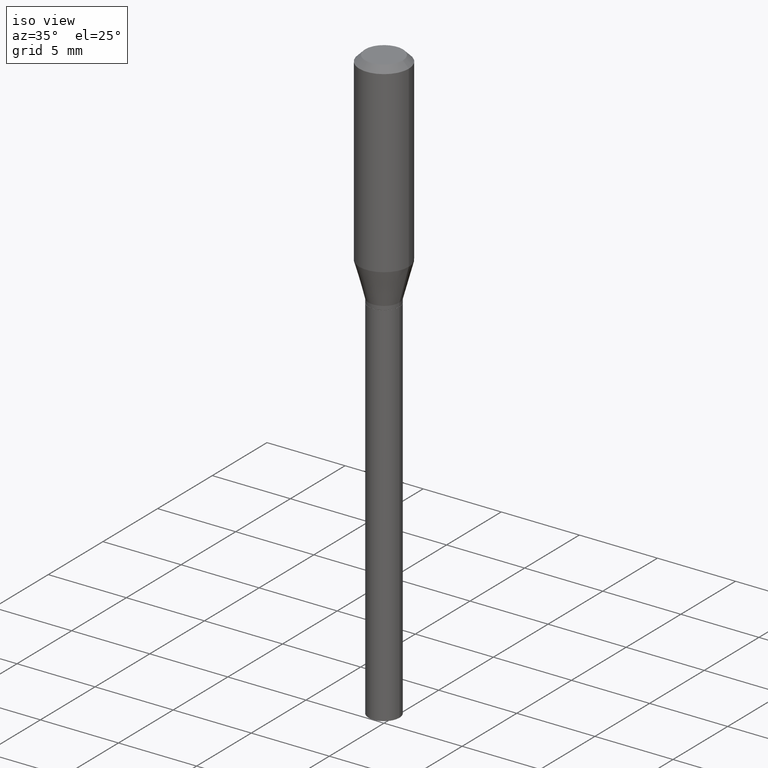
[diagram: clean part render]
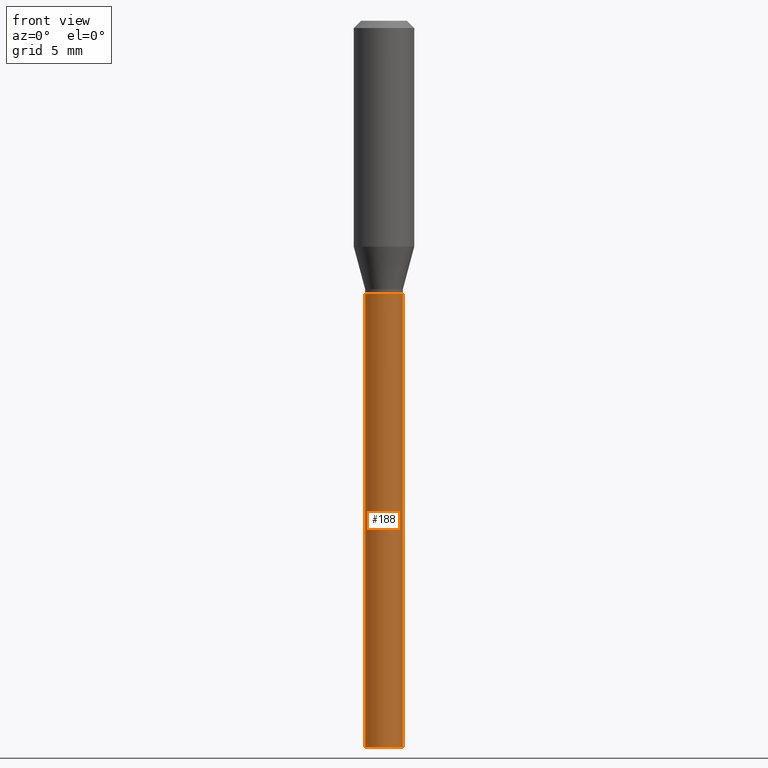
[diagram: tour spotlight — one face highlighted and labeled with its STEP entity id]
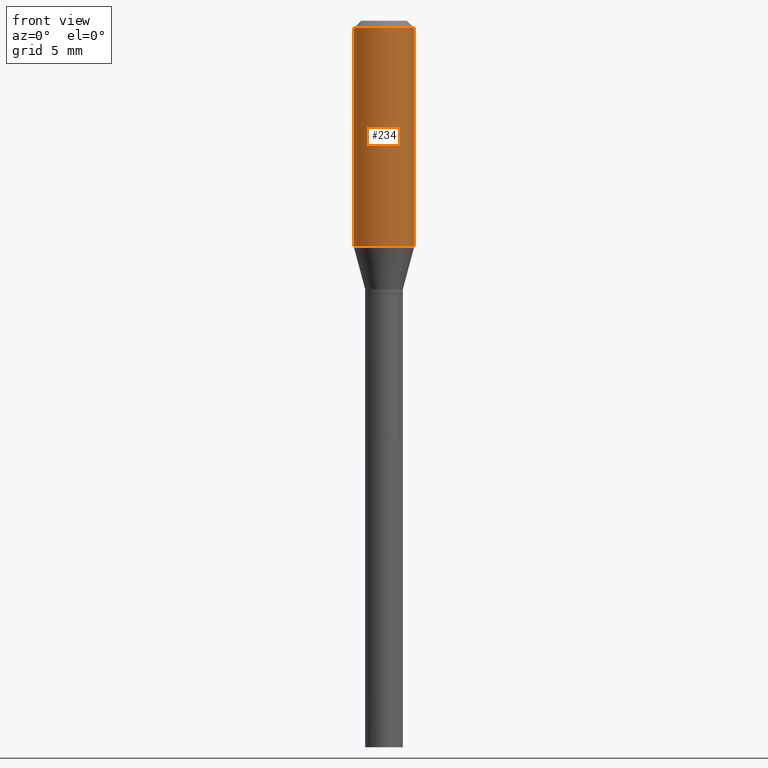
[diagram: tour spotlight — one face highlighted and labeled with its STEP entity id]
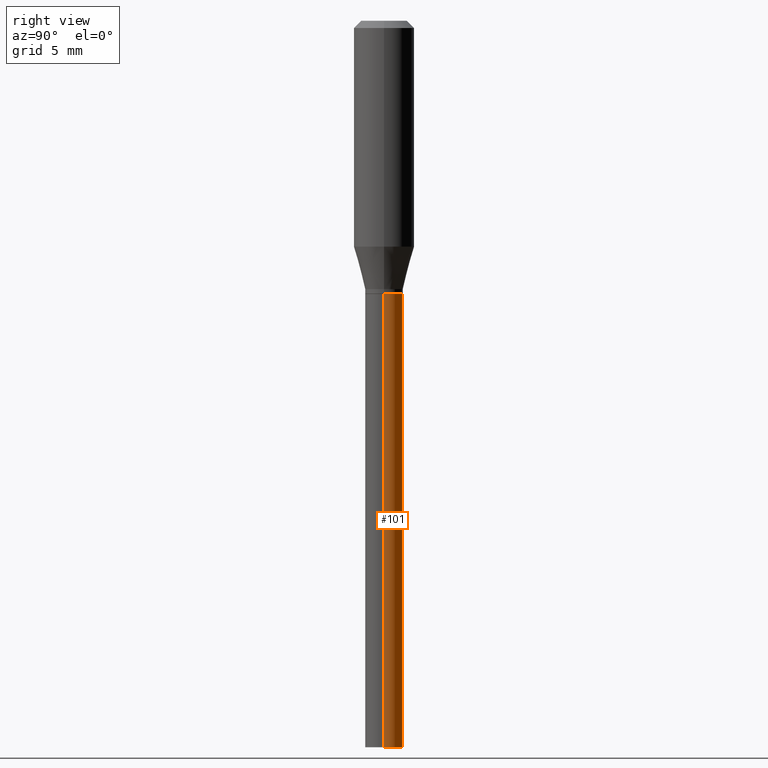
[diagram: tour spotlight — one face highlighted and labeled with its STEP entity id]
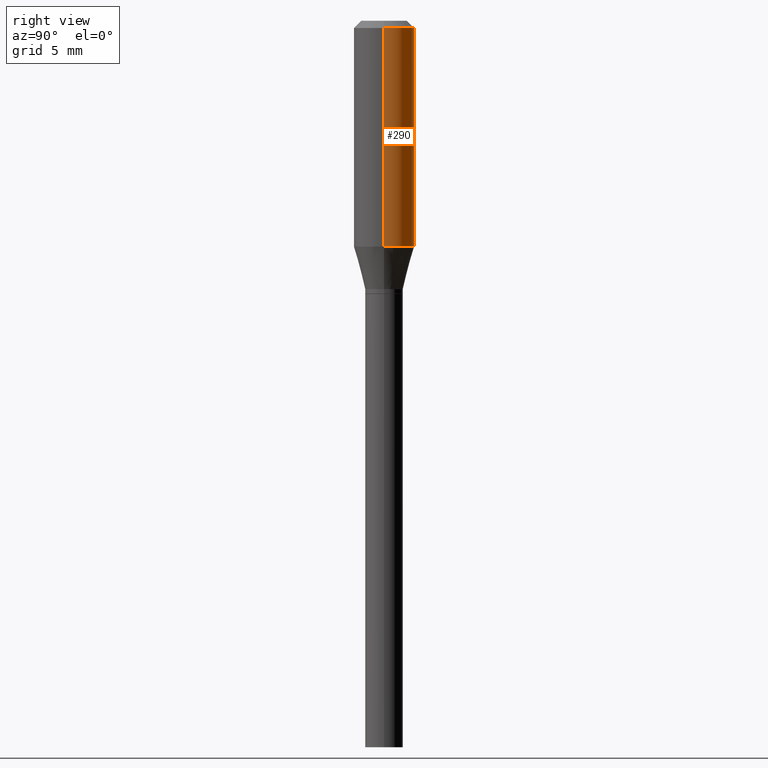
[diagram: tour spotlight — one face highlighted and labeled with its STEP entity id]
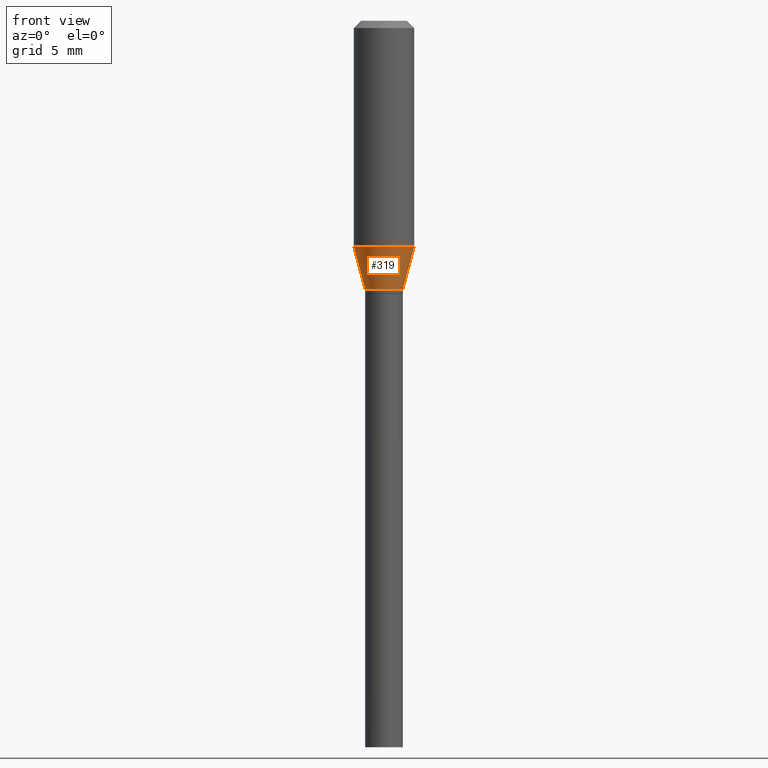
[diagram: tour spotlight — one face highlighted and labeled with its STEP entity id]
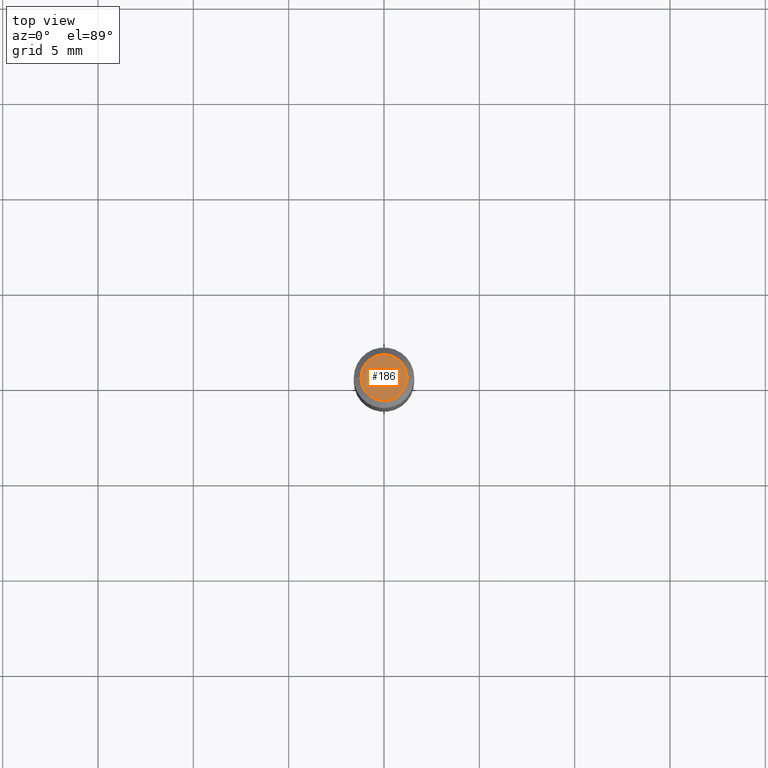
[diagram: tour spotlight — one face highlighted and labeled with its STEP entity id]
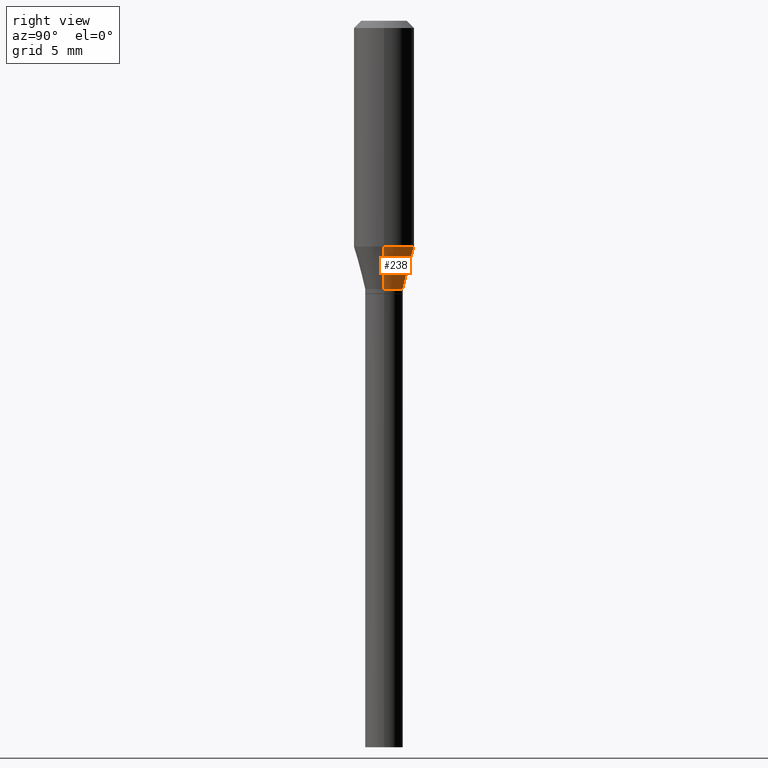
[diagram: tour spotlight — one face highlighted and labeled with its STEP entity id]
A machine part: a face-by-face anatomy tour. The part has 16 B-rep faces; the first image is the clean iso view, then the 7 largest visible faces are spotlighted one at a time (largest first), each with its STEP entity span.

Face 1 — front view, entity #188. In plain terms, the highlighted cylindrical surface (edge-blend (fillet) strip) has radius 0.9906 mm, axis along (-0, 0, 1).
Definition (entity closure, byte-faithful):
#2 = EDGE_CURVE ( 'NONE', #178, #13, #392, .T. ) ;
#3 = LINE ( 'NONE', #121, #437 ) ;
#10 = ORIENTED_EDGE ( 'NONE', *, *, #30, .T. ) ;
#13 = VERTEX_POINT ( 'NONE', #56 ) ;
#17 = DIRECTION ( 'NONE',  ( -2.445468806185136877E-29, 3.491481338843145188E-15, 1.000000000000000000 ) ) ;
#30 = EDGE_CURVE ( 'NONE', #189, #13, #136, .T. ) ;
#56 = CARTESIAN_POINT ( 'NONE',  ( 0.03899999999999999994, -2.241531019537298935E-15, -0.5640000000000000568 ) ) ;
#65 = DIRECTION ( 'NONE',  ( 1.000000000000000000, -6.982962677686265922E-15, 4.876176775795935793E-29 ) ) ;
#68 = EDGE_CURVE ( 'NONE', #218, #189, #261, .T. ) ;
#75 = ORIENTED_EDGE ( 'NONE', *, *, #212, .F. ) ;
#99 = CARTESIAN_POINT ( 'NONE',  ( -0.03899999999999999994, -3.326097074739686831E-15, -1.500000000000000222 ) ) ;
#107 = ORIENTED_EDGE ( 'NONE', *, *, #68, .T. ) ;
#115 = CARTESIAN_POINT ( 'NONE',  ( 1.379244406688417180E-29, -1.969195475107534123E-15, -0.5640000000000000568 ) ) ;
#121 = CARTESIAN_POINT ( 'NONE',  ( -0.03899999999999999994, 2.771116669464390721E-16, -1.918384685199413078E-30 ) ) ;
#136 = LINE ( 'NONE', #313, #358 ) ;
#159 = CARTESIAN_POINT ( 'NONE',  ( 0.000000000000000000, 0.000000000000000000, 0.000000000000000000 ) ) ;
#172 = DIRECTION ( 'NONE',  ( 1.000000000000000000, -6.982962677686258033E-15, 0.000000000000000000 ) ) ;
#178 = VERTEX_POINT ( 'NONE', #423 ) ;
#179 = FACE_OUTER_BOUND ( 'NONE', #325, .T. ) ;
#188 = ADVANCED_FACE ( 'NONE', ( #179 ), #226, .T. ) ;
#189 = VERTEX_POINT ( 'NONE', #207 ) ;
#197 = DIRECTION ( 'NONE',  ( -2.445468806185136597E-29, 3.491481338843145583E-15, 1.000000000000000000 ) ) ;
#207 = CARTESIAN_POINT ( 'NONE',  ( 0.03899999999999999994, -5.509557552694482989E-15, -1.500000000000000222 ) ) ;
#212 = EDGE_CURVE ( 'NONE', #218, #178, #3, .T. ) ;
#218 = VERTEX_POINT ( 'NONE', #99 ) ;
#224 = DIRECTION ( 'NONE',  ( 1.000000000000000000, -6.982962677686270655E-15, 0.000000000000000000 ) ) ;
#226 = CYLINDRICAL_SURFACE ( 'NONE', #277, 0.03899999999999999994 ) ;
#257 = DIRECTION ( 'NONE',  ( -2.445468806185136597E-29, 3.491481338843145583E-15, 1.000000000000000000 ) ) ;
#261 = CIRCLE ( 'NONE', #455, 0.03899999999999999994 ) ;
#277 = AXIS2_PLACEMENT_3D ( 'NONE', #159, #366, #65 ) ;
#311 = CARTESIAN_POINT ( 'NONE',  ( 3.668203209277704895E-29, -5.237222008264718177E-15, -1.500000000000000222 ) ) ;
#313 = CARTESIAN_POINT ( 'NONE',  ( 0.03899999999999999994, -2.723355444297643682E-16, 1.901708942560414931E-30 ) ) ;
#316 = DIRECTION ( 'NONE',  ( -2.445468806185136877E-29, 3.491481338843145188E-15, 1.000000000000000000 ) ) ;
#325 = EDGE_LOOP ( 'NONE', ( #75, #107, #10, #461 ) ) ;
#358 = VECTOR ( 'NONE', #316, 39.37007874015748143 ) ;
#366 = DIRECTION ( 'NONE',  ( -2.445468806185136597E-29, 3.491481338843145583E-15, 1.000000000000000000 ) ) ;
#392 = CIRCLE ( 'NONE', #412, 0.03899999999999999994 ) ;
#412 = AXIS2_PLACEMENT_3D ( 'NONE', #115, #257, #224 ) ;
#423 = CARTESIAN_POINT ( 'NONE',  ( -0.03899999999999999994, -3.326097074739686831E-15, -0.5640000000000000568 ) ) ;
#437 = VECTOR ( 'NONE', #17, 39.37007874015748143 ) ;
#455 = AXIS2_PLACEMENT_3D ( 'NONE', #311, #197, #172 ) ;
#461 = ORIENTED_EDGE ( 'NONE', *, *, #2, .F. ) ;

Face 2 — front view, entity #234. In plain terms, the highlighted cylindrical surface (edge-blend (fillet) strip) has radius 1.5875 mm, axis along (-0, 0, 1).
Definition (entity closure, byte-faithful):
#15 = VECTOR ( 'NONE', #182, 39.37007874015748143 ) ;
#53 = VECTOR ( 'NONE', #382, 39.37007874015748143 ) ;
#58 = DIRECTION ( 'NONE',  ( 1.000000000000000000, -6.982962677686266711E-15, 0.000000000000000000 ) ) ;
#73 = ORIENTED_EDGE ( 'NONE', *, *, #74, .T. ) ;
#74 = EDGE_CURVE ( 'NONE', #466, #330, #245, .T. ) ;
#81 = ORIENTED_EDGE ( 'NONE', *, *, #142, .F. ) ;
#84 = ORIENTED_EDGE ( 'NONE', *, *, #296, .F. ) ;
#122 = EDGE_CURVE ( 'NONE', #330, #328, #452, .T. ) ;
#129 = DIRECTION ( 'NONE',  ( -2.445468806185136597E-29, 3.491481338843145583E-15, 1.000000000000000000 ) ) ;
#133 = AXIS2_PLACEMENT_3D ( 'NONE', #456, #129, #271 ) ;
#142 = EDGE_CURVE ( 'NONE', #355, #328, #202, .T. ) ;
#146 = CARTESIAN_POINT ( 'NONE',  ( -0.06250000000000000000, 4.440892098500626162E-16, -3.074334431409316114E-30 ) ) ;
#182 = DIRECTION ( 'NONE',  ( -2.445468806185136877E-29, 3.491481338843145188E-15, 1.000000000000000000 ) ) ;
#202 = CIRCLE ( 'NONE', #133, 0.06250000000000000000 ) ;
#208 = CARTESIAN_POINT ( 'NONE',  ( 1.140314293550883428E-29, -1.628066596588433426E-15, -0.4662968060221312494 ) ) ;
#216 = AXIS2_PLACEMENT_3D ( 'NONE', #303, #339, #231 ) ;
#231 = DIRECTION ( 'NONE',  ( 1.000000000000000000, -6.982962677686266711E-15, 4.876176775795935793E-29 ) ) ;
#234 = ADVANCED_FACE ( 'NONE', ( #387 ), #268, .T. ) ;
#241 = EDGE_LOOP ( 'NONE', ( #84, #73, #406, #81 ) ) ;
#245 = CIRCLE ( 'NONE', #324, 0.06250000000000000000 ) ;
#251 = CARTESIAN_POINT ( 'NONE',  ( 0.06250000000000000000, -4.888073874380388472E-16, -0.01499999999999999944 ) ) ;
#253 = CARTESIAN_POINT ( 'NONE',  ( -0.06250000000000000000, -3.961301984854776856E-16, -0.01499999999999999944 ) ) ;
#268 = CYLINDRICAL_SURFACE ( 'NONE', #216, 0.06250000000000000000 ) ;
#271 = DIRECTION ( 'NONE',  ( 1.000000000000000000, -6.982962677686266711E-15, 0.000000000000000000 ) ) ;
#296 = EDGE_CURVE ( 'NONE', #466, #355, #353, .T. ) ;
#303 = CARTESIAN_POINT ( 'NONE',  ( 0.000000000000000000, 0.000000000000000000, 0.000000000000000000 ) ) ;
#305 = CARTESIAN_POINT ( 'NONE',  ( -0.06250000000000000000, -1.183977386738370809E-15, -0.4662968060221312494 ) ) ;
#324 = AXIS2_PLACEMENT_3D ( 'NONE', #208, #379, #58 ) ;
#328 = VERTEX_POINT ( 'NONE', #251 ) ;
#330 = VERTEX_POINT ( 'NONE', #399 ) ;
#339 = DIRECTION ( 'NONE',  ( -2.445468806185136597E-29, 3.491481338843145583E-15, 1.000000000000000000 ) ) ;
#343 = CARTESIAN_POINT ( 'NONE',  ( 0.06250000000000000000, -4.364351673553916694E-16, 3.047610484872459871E-30 ) ) ;
#353 = LINE ( 'NONE', #146, #15 ) ;
#355 = VERTEX_POINT ( 'NONE', #253 ) ;
#379 = DIRECTION ( 'NONE',  ( -2.445468806185136597E-29, 3.491481338843145583E-15, 1.000000000000000000 ) ) ;
#382 = DIRECTION ( 'NONE',  ( -2.445468806185136877E-29, 3.491481338843145188E-15, 1.000000000000000000 ) ) ;
#387 = FACE_OUTER_BOUND ( 'NONE', #241, .T. ) ;
#399 = CARTESIAN_POINT ( 'NONE',  ( 0.06250000000000000000, -2.064501763943824898E-15, -0.4662968060221312494 ) ) ;
#406 = ORIENTED_EDGE ( 'NONE', *, *, #122, .T. ) ;
#452 = LINE ( 'NONE', #343, #53 ) ;
#456 = CARTESIAN_POINT ( 'NONE',  ( 3.668203209277705088E-31, -5.237222008264718399E-17, -0.01499999999999999944 ) ) ;
#466 = VERTEX_POINT ( 'NONE', #305 ) ;

Face 3 — right view, entity #101. In plain terms, the highlighted cylindrical surface (edge-blend (fillet) strip) has radius 0.9906 mm, axis along (-0, 0, 1).
Definition (entity closure, byte-faithful):
#3 = LINE ( 'NONE', #121, #437 ) ;
#13 = VERTEX_POINT ( 'NONE', #56 ) ;
#17 = DIRECTION ( 'NONE',  ( -2.445468806185136877E-29, 3.491481338843145188E-15, 1.000000000000000000 ) ) ;
#25 = DIRECTION ( 'NONE',  ( -2.445468806185136597E-29, 3.491481338843145583E-15, 1.000000000000000000 ) ) ;
#28 = EDGE_CURVE ( 'NONE', #13, #178, #449, .T. ) ;
#30 = EDGE_CURVE ( 'NONE', #189, #13, #136, .T. ) ;
#31 = CYLINDRICAL_SURFACE ( 'NONE', #194, 0.03899999999999999994 ) ;
#56 = CARTESIAN_POINT ( 'NONE',  ( 0.03899999999999999994, -2.241531019537298935E-15, -0.5640000000000000568 ) ) ;
#79 = EDGE_LOOP ( 'NONE', ( #254, #401, #430, #274 ) ) ;
#91 = DIRECTION ( 'NONE',  ( 1.000000000000000000, -6.982962677686270655E-15, 0.000000000000000000 ) ) ;
#99 = CARTESIAN_POINT ( 'NONE',  ( -0.03899999999999999994, -3.326097074739686831E-15, -1.500000000000000222 ) ) ;
#101 = ADVANCED_FACE ( 'NONE', ( #200 ), #31, .T. ) ;
#105 = EDGE_CURVE ( 'NONE', #189, #218, #407, .T. ) ;
#121 = CARTESIAN_POINT ( 'NONE',  ( -0.03899999999999999994, 2.771116669464390721E-16, -1.918384685199413078E-30 ) ) ;
#136 = LINE ( 'NONE', #313, #358 ) ;
#170 = DIRECTION ( 'NONE',  ( 1.000000000000000000, -6.982962677686258033E-15, 0.000000000000000000 ) ) ;
#178 = VERTEX_POINT ( 'NONE', #423 ) ;
#189 = VERTEX_POINT ( 'NONE', #207 ) ;
#194 = AXIS2_PLACEMENT_3D ( 'NONE', #344, #25, #242 ) ;
#200 = FACE_OUTER_BOUND ( 'NONE', #79, .T. ) ;
#207 = CARTESIAN_POINT ( 'NONE',  ( 0.03899999999999999994, -5.509557552694482989E-15, -1.500000000000000222 ) ) ;
#212 = EDGE_CURVE ( 'NONE', #218, #178, #3, .T. ) ;
#218 = VERTEX_POINT ( 'NONE', #99 ) ;
#235 = CARTESIAN_POINT ( 'NONE',  ( 3.668203209277704895E-29, -5.237222008264718177E-15, -1.500000000000000222 ) ) ;
#242 = DIRECTION ( 'NONE',  ( 1.000000000000000000, -6.982962677686265922E-15, 4.876176775795935793E-29 ) ) ;
#254 = ORIENTED_EDGE ( 'NONE', *, *, #105, .T. ) ;
#262 = DIRECTION ( 'NONE',  ( -2.445468806185136597E-29, 3.491481338843145583E-15, 1.000000000000000000 ) ) ;
#274 = ORIENTED_EDGE ( 'NONE', *, *, #30, .F. ) ;
#276 = AXIS2_PLACEMENT_3D ( 'NONE', #235, #262, #170 ) ;
#309 = CARTESIAN_POINT ( 'NONE',  ( 1.379244406688417180E-29, -1.969195475107534123E-15, -0.5640000000000000568 ) ) ;
#313 = CARTESIAN_POINT ( 'NONE',  ( 0.03899999999999999994, -2.723355444297643682E-16, 1.901708942560414931E-30 ) ) ;
#316 = DIRECTION ( 'NONE',  ( -2.445468806185136877E-29, 3.491481338843145188E-15, 1.000000000000000000 ) ) ;
#336 = AXIS2_PLACEMENT_3D ( 'NONE', #309, #348, #91 ) ;
#344 = CARTESIAN_POINT ( 'NONE',  ( 0.000000000000000000, 0.000000000000000000, 0.000000000000000000 ) ) ;
#348 = DIRECTION ( 'NONE',  ( -2.445468806185136597E-29, 3.491481338843145583E-15, 1.000000000000000000 ) ) ;
#358 = VECTOR ( 'NONE', #316, 39.37007874015748143 ) ;
#401 = ORIENTED_EDGE ( 'NONE', *, *, #212, .T. ) ;
#407 = CIRCLE ( 'NONE', #276, 0.03899999999999999994 ) ;
#423 = CARTESIAN_POINT ( 'NONE',  ( -0.03899999999999999994, -3.326097074739686831E-15, -0.5640000000000000568 ) ) ;
#430 = ORIENTED_EDGE ( 'NONE', *, *, #28, .F. ) ;
#437 = VECTOR ( 'NONE', #17, 39.37007874015748143 ) ;
#449 = CIRCLE ( 'NONE', #336, 0.03899999999999999994 ) ;

Face 4 — right view, entity #290. In plain terms, the highlighted cylindrical surface (edge-blend (fillet) strip) has radius 1.5875 mm, axis along (-0, 0, 1).
Definition (entity closure, byte-faithful):
#15 = VECTOR ( 'NONE', #182, 39.37007874015748143 ) ;
#53 = VECTOR ( 'NONE', #382, 39.37007874015748143 ) ;
#63 = DIRECTION ( 'NONE',  ( 1.000000000000000000, -6.982962677686266711E-15, 0.000000000000000000 ) ) ;
#70 = AXIS2_PLACEMENT_3D ( 'NONE', #322, #464, #431 ) ;
#96 = DIRECTION ( 'NONE',  ( -2.445468806185136597E-29, 3.491481338843145583E-15, 1.000000000000000000 ) ) ;
#98 = DIRECTION ( 'NONE',  ( 1.000000000000000000, -6.982962677686266711E-15, 0.000000000000000000 ) ) ;
#122 = EDGE_CURVE ( 'NONE', #330, #328, #452, .T. ) ;
#138 = FACE_OUTER_BOUND ( 'NONE', #436, .T. ) ;
#146 = CARTESIAN_POINT ( 'NONE',  ( -0.06250000000000000000, 4.440892098500626162E-16, -3.074334431409316114E-30 ) ) ;
#148 = ORIENTED_EDGE ( 'NONE', *, *, #122, .F. ) ;
#155 = EDGE_CURVE ( 'NONE', #330, #466, #223, .T. ) ;
#166 = DIRECTION ( 'NONE',  ( -2.445468806185136597E-29, 3.491481338843145583E-15, 1.000000000000000000 ) ) ;
#180 = ORIENTED_EDGE ( 'NONE', *, *, #155, .T. ) ;
#182 = DIRECTION ( 'NONE',  ( -2.445468806185136877E-29, 3.491481338843145188E-15, 1.000000000000000000 ) ) ;
#214 = ORIENTED_EDGE ( 'NONE', *, *, #296, .T. ) ;
#223 = CIRCLE ( 'NONE', #397, 0.06250000000000000000 ) ;
#247 = CIRCLE ( 'NONE', #265, 0.06250000000000000000 ) ;
#251 = CARTESIAN_POINT ( 'NONE',  ( 0.06250000000000000000, -4.888073874380388472E-16, -0.01499999999999999944 ) ) ;
#253 = CARTESIAN_POINT ( 'NONE',  ( -0.06250000000000000000, -3.961301984854776856E-16, -0.01499999999999999944 ) ) ;
#259 = EDGE_CURVE ( 'NONE', #328, #355, #247, .T. ) ;
#265 = AXIS2_PLACEMENT_3D ( 'NONE', #421, #96, #63 ) ;
#279 = CYLINDRICAL_SURFACE ( 'NONE', #70, 0.06250000000000000000 ) ;
#290 = ADVANCED_FACE ( 'NONE', ( #138 ), #279, .T. ) ;
#296 = EDGE_CURVE ( 'NONE', #466, #355, #353, .T. ) ;
#305 = CARTESIAN_POINT ( 'NONE',  ( -0.06250000000000000000, -1.183977386738370809E-15, -0.4662968060221312494 ) ) ;
#306 = CARTESIAN_POINT ( 'NONE',  ( 1.140314293550883428E-29, -1.628066596588433426E-15, -0.4662968060221312494 ) ) ;
#322 = CARTESIAN_POINT ( 'NONE',  ( 0.000000000000000000, 0.000000000000000000, 0.000000000000000000 ) ) ;
#328 = VERTEX_POINT ( 'NONE', #251 ) ;
#330 = VERTEX_POINT ( 'NONE', #399 ) ;
#343 = CARTESIAN_POINT ( 'NONE',  ( 0.06250000000000000000, -4.364351673553916694E-16, 3.047610484872459871E-30 ) ) ;
#353 = LINE ( 'NONE', #146, #15 ) ;
#355 = VERTEX_POINT ( 'NONE', #253 ) ;
#364 = ORIENTED_EDGE ( 'NONE', *, *, #259, .F. ) ;
#382 = DIRECTION ( 'NONE',  ( -2.445468806185136877E-29, 3.491481338843145188E-15, 1.000000000000000000 ) ) ;
#397 = AXIS2_PLACEMENT_3D ( 'NONE', #306, #166, #98 ) ;
#399 = CARTESIAN_POINT ( 'NONE',  ( 0.06250000000000000000, -2.064501763943824898E-15, -0.4662968060221312494 ) ) ;
#421 = CARTESIAN_POINT ( 'NONE',  ( 3.668203209277705088E-31, -5.237222008264718399E-17, -0.01499999999999999944 ) ) ;
#431 = DIRECTION ( 'NONE',  ( 1.000000000000000000, -6.982962677686266711E-15, 4.876176775795935793E-29 ) ) ;
#436 = EDGE_LOOP ( 'NONE', ( #180, #214, #364, #148 ) ) ;
#452 = LINE ( 'NONE', #343, #53 ) ;
#464 = DIRECTION ( 'NONE',  ( -2.445468806185136597E-29, 3.491481338843145583E-15, 1.000000000000000000 ) ) ;
#466 = VERTEX_POINT ( 'NONE', #305 ) ;

Face 5 — front view, entity #319. In plain terms, the highlighted conical surface has half-angle 15 deg.
Definition (entity closure, byte-faithful):
#4 = DIRECTION ( 'NONE',  ( 1.000000000000000000, -6.982962677686268288E-15, 0.000000000000000000 ) ) ;
#27 = CARTESIAN_POINT ( 'NONE',  ( -0.03899999999999990974, -1.657168994772664338E-15, -0.5540000000000000480 ) ) ;
#39 = ORIENTED_EDGE ( 'NONE', *, *, #354, .T. ) ;
#40 = VECTOR ( 'NONE', #112, 39.37007874015748854 ) ;
#43 = CARTESIAN_POINT ( 'NONE',  ( 0.03899999999999990974, -2.206616206148866497E-15, -0.5540000000000000480 ) ) ;
#44 = EDGE_LOOP ( 'NONE', ( #154, #39, #183, #285 ) ) ;
#45 = LINE ( 'NONE', #43, #40 ) ;
#58 = DIRECTION ( 'NONE',  ( 1.000000000000000000, -6.982962677686266711E-15, 0.000000000000000000 ) ) ;
#74 = EDGE_CURVE ( 'NONE', #466, #330, #245, .T. ) ;
#80 = CARTESIAN_POINT ( 'NONE',  ( 0.03899999999999990974, -2.206616206148866497E-15, -0.5540000000000000480 ) ) ;
#82 = CARTESIAN_POINT ( 'NONE',  ( -0.03899999999999990974, -1.420573190755517475E-15, -0.5540000000000000480 ) ) ;
#83 = AXIS2_PLACEMENT_3D ( 'NONE', #149, #363, #4 ) ;
#103 = VECTOR ( 'NONE', #273, 39.37007874015748854 ) ;
#112 = DIRECTION ( 'NONE',  ( 0.2588190451025211836, 1.565188264969622559E-15, 0.9659258262890679791 ) ) ;
#149 = CARTESIAN_POINT ( 'NONE',  ( 1.354789718626565634E-29, -1.934280661719102868E-15, -0.5540000000000000480 ) ) ;
#154 = ORIENTED_EDGE ( 'NONE', *, *, #255, .F. ) ;
#169 = CONICAL_SURFACE ( 'NONE', #337, 0.03899999999999990974, 0.2617993877991499074 ) ;
#183 = ORIENTED_EDGE ( 'NONE', *, *, #320, .T. ) ;
#208 = CARTESIAN_POINT ( 'NONE',  ( 1.140314293550883428E-29, -1.628066596588433426E-15, -0.4662968060221312494 ) ) ;
#217 = DIRECTION ( 'NONE',  ( 1.000000000000000000, -6.982962677686268288E-15, 0.000000000000000000 ) ) ;
#245 = CIRCLE ( 'NONE', #324, 0.06250000000000000000 ) ;
#255 = EDGE_CURVE ( 'NONE', #394, #466, #418, .T. ) ;
#273 = DIRECTION ( 'NONE',  ( -0.2588190451025211836, 5.211531920934547886E-15, 0.9659258262890679791 ) ) ;
#285 = ORIENTED_EDGE ( 'NONE', *, *, #74, .F. ) ;
#305 = CARTESIAN_POINT ( 'NONE',  ( -0.06250000000000000000, -1.183977386738370809E-15, -0.4662968060221312494 ) ) ;
#319 = ADVANCED_FACE ( 'NONE', ( #463 ), #169, .T. ) ;
#320 = EDGE_CURVE ( 'NONE', #384, #330, #45, .T. ) ;
#324 = AXIS2_PLACEMENT_3D ( 'NONE', #208, #379, #58 ) ;
#327 = CARTESIAN_POINT ( 'NONE',  ( 1.354789718626565634E-29, -1.934280661719102868E-15, -0.5540000000000000480 ) ) ;
#329 = DIRECTION ( 'NONE',  ( -2.445468806185136597E-29, 3.491481338843145583E-15, 1.000000000000000000 ) ) ;
#330 = VERTEX_POINT ( 'NONE', #399 ) ;
#337 = AXIS2_PLACEMENT_3D ( 'NONE', #327, #329, #217 ) ;
#354 = EDGE_CURVE ( 'NONE', #394, #384, #428, .T. ) ;
#363 = DIRECTION ( 'NONE',  ( -2.445468806185136597E-29, 3.491481338843145583E-15, 1.000000000000000000 ) ) ;
#379 = DIRECTION ( 'NONE',  ( -2.445468806185136597E-29, 3.491481338843145583E-15, 1.000000000000000000 ) ) ;
#384 = VERTEX_POINT ( 'NONE', #80 ) ;
#394 = VERTEX_POINT ( 'NONE', #82 ) ;
#399 = CARTESIAN_POINT ( 'NONE',  ( 0.06250000000000000000, -2.064501763943824898E-15, -0.4662968060221312494 ) ) ;
#418 = LINE ( 'NONE', #27, #103 ) ;
#428 = CIRCLE ( 'NONE', #83, 0.03899999999999990974 ) ;
#463 = FACE_OUTER_BOUND ( 'NONE', #44, .T. ) ;
#466 = VERTEX_POINT ( 'NONE', #305 ) ;

Face 6 — top view, entity #186. In plain terms, the highlighted planar face has unit normal (0, -0, -1).
Definition (entity closure, byte-faithful):
#18 = DIRECTION ( 'NONE',  ( 1.000000000000000000, -6.982962677686267499E-15, 4.852736867747366768E-29 ) ) ;
#33 = DIRECTION ( 'NONE',  ( 1.000000000000000000, -6.982962677686267499E-15, 4.852736867747366768E-29 ) ) ;
#34 = ORIENTED_EDGE ( 'NONE', *, *, #260, .T. ) ;
#64 = ORIENTED_EDGE ( 'NONE', *, *, #448, .T. ) ;
#100 = FACE_OUTER_BOUND ( 'NONE', #157, .T. ) ;
#109 = AXIS2_PLACEMENT_3D ( 'NONE', #340, #127, #18 ) ;
#127 = DIRECTION ( 'NONE',  ( -2.445468806185136597E-29, 3.491481338843145583E-15, 1.000000000000000000 ) ) ;
#153 = CIRCLE ( 'NONE', #109, 0.04749999999999999362 ) ;
#157 = EDGE_LOOP ( 'NONE', ( #64, #34 ) ) ;
#165 = DIRECTION ( 'NONE',  ( -1.000000000000000000, 6.982962677686265922E-15, -4.876176775795935793E-29 ) ) ;
#186 = ADVANCED_FACE ( 'NONE', ( #100 ), #390, .F. ) ;
#196 = CARTESIAN_POINT ( 'NONE',  ( 3.316907271900976096E-16, 0.04749999999999999362, 9.606345999275830148E-17 ) ) ;
#205 = CARTESIAN_POINT ( 'NONE',  ( -1.280979716297259255E-44, 1.828899540070384152E-30, 5.238176471756153958E-16 ) ) ;
#219 = CARTESIAN_POINT ( 'NONE',  ( 0.04749999999999999362, -4.035134999187569255E-16, 5.238176471756179596E-16 ) ) ;
#227 = AXIS2_PLACEMENT_3D ( 'NONE', #205, #350, #33 ) ;
#260 = EDGE_CURVE ( 'NONE', #425, #403, #263, .T. ) ;
#263 = CIRCLE ( 'NONE', #227, 0.04749999999999999362 ) ;
#340 = CARTESIAN_POINT ( 'NONE',  ( -1.280979716297259255E-44, 1.828899540070384152E-30, 5.238176471756153958E-16 ) ) ;
#341 = DIRECTION ( 'NONE',  ( 2.438088387897960049E-29, -3.491481338843145188E-15, -1.000000000000000000 ) ) ;
#350 = DIRECTION ( 'NONE',  ( -2.445468806185136597E-29, 3.491481338843145583E-15, 1.000000000000000000 ) ) ;
#372 = AXIS2_PLACEMENT_3D ( 'NONE', #196, #341, #165 ) ;
#390 = PLANE ( 'NONE',  #372 ) ;
#396 = CARTESIAN_POINT ( 'NONE',  ( -0.04749999999999999362, 3.578768372314219874E-16, 5.238176471756130292E-16 ) ) ;
#403 = VERTEX_POINT ( 'NONE', #396 ) ;
#425 = VERTEX_POINT ( 'NONE', #219 ) ;
#448 = EDGE_CURVE ( 'NONE', #403, #425, #153, .T. ) ;

Face 7 — right view, entity #238. In plain terms, the highlighted conical surface has half-angle 15 deg.
Definition (entity closure, byte-faithful):
#8 = CIRCLE ( 'NONE', #190, 0.03899999999999990974 ) ;
#19 = EDGE_CURVE ( 'NONE', #384, #394, #8, .T. ) ;
#21 = DIRECTION ( 'NONE',  ( -2.445468806185136597E-29, 3.491481338843145583E-15, 1.000000000000000000 ) ) ;
#27 = CARTESIAN_POINT ( 'NONE',  ( -0.03899999999999990974, -1.657168994772664338E-15, -0.5540000000000000480 ) ) ;
#40 = VECTOR ( 'NONE', #112, 39.37007874015748854 ) ;
#41 = ORIENTED_EDGE ( 'NONE', *, *, #255, .T. ) ;
#43 = CARTESIAN_POINT ( 'NONE',  ( 0.03899999999999990974, -2.206616206148866497E-15, -0.5540000000000000480 ) ) ;
#45 = LINE ( 'NONE', #43, #40 ) ;
#80 = CARTESIAN_POINT ( 'NONE',  ( 0.03899999999999990974, -2.206616206148866497E-15, -0.5540000000000000480 ) ) ;
#82 = CARTESIAN_POINT ( 'NONE',  ( -0.03899999999999990974, -1.420573190755517475E-15, -0.5540000000000000480 ) ) ;
#98 = DIRECTION ( 'NONE',  ( 1.000000000000000000, -6.982962677686266711E-15, 0.000000000000000000 ) ) ;
#103 = VECTOR ( 'NONE', #273, 39.37007874015748854 ) ;
#112 = DIRECTION ( 'NONE',  ( 0.2588190451025211836, 1.565188264969622559E-15, 0.9659258262890679791 ) ) ;
#126 = FACE_OUTER_BOUND ( 'NONE', #246, .T. ) ;
#144 = AXIS2_PLACEMENT_3D ( 'NONE', #377, #237, #347 ) ;
#155 = EDGE_CURVE ( 'NONE', #330, #466, #223, .T. ) ;
#160 = CONICAL_SURFACE ( 'NONE', #144, 0.03899999999999990974, 0.2617993877991499074 ) ;
#166 = DIRECTION ( 'NONE',  ( -2.445468806185136597E-29, 3.491481338843145583E-15, 1.000000000000000000 ) ) ;
#190 = AXIS2_PLACEMENT_3D ( 'NONE', #416, #21, #413 ) ;
#223 = CIRCLE ( 'NONE', #397, 0.06250000000000000000 ) ;
#237 = DIRECTION ( 'NONE',  ( -2.445468806185136597E-29, 3.491481338843145583E-15, 1.000000000000000000 ) ) ;
#238 = ADVANCED_FACE ( 'NONE', ( #126 ), #160, .T. ) ;
#246 = EDGE_LOOP ( 'NONE', ( #441, #41, #359, #391 ) ) ;
#255 = EDGE_CURVE ( 'NONE', #394, #466, #418, .T. ) ;
#273 = DIRECTION ( 'NONE',  ( -0.2588190451025211836, 5.211531920934547886E-15, 0.9659258262890679791 ) ) ;
#305 = CARTESIAN_POINT ( 'NONE',  ( -0.06250000000000000000, -1.183977386738370809E-15, -0.4662968060221312494 ) ) ;
#306 = CARTESIAN_POINT ( 'NONE',  ( 1.140314293550883428E-29, -1.628066596588433426E-15, -0.4662968060221312494 ) ) ;
#320 = EDGE_CURVE ( 'NONE', #384, #330, #45, .T. ) ;
#330 = VERTEX_POINT ( 'NONE', #399 ) ;
#347 = DIRECTION ( 'NONE',  ( 1.000000000000000000, -6.982962677686268288E-15, 0.000000000000000000 ) ) ;
#359 = ORIENTED_EDGE ( 'NONE', *, *, #155, .F. ) ;
#377 = CARTESIAN_POINT ( 'NONE',  ( 1.354789718626565634E-29, -1.934280661719102868E-15, -0.5540000000000000480 ) ) ;
#384 = VERTEX_POINT ( 'NONE', #80 ) ;
#391 = ORIENTED_EDGE ( 'NONE', *, *, #320, .F. ) ;
#394 = VERTEX_POINT ( 'NONE', #82 ) ;
#397 = AXIS2_PLACEMENT_3D ( 'NONE', #306, #166, #98 ) ;
#399 = CARTESIAN_POINT ( 'NONE',  ( 0.06250000000000000000, -2.064501763943824898E-15, -0.4662968060221312494 ) ) ;
#413 = DIRECTION ( 'NONE',  ( 1.000000000000000000, -6.982962677686268288E-15, 0.000000000000000000 ) ) ;
#416 = CARTESIAN_POINT ( 'NONE',  ( 1.354789718626565634E-29, -1.934280661719102868E-15, -0.5540000000000000480 ) ) ;
#418 = LINE ( 'NONE', #27, #103 ) ;
#441 = ORIENTED_EDGE ( 'NONE', *, *, #19, .T. ) ;
#466 = VERTEX_POINT ( 'NONE', #305 ) ;